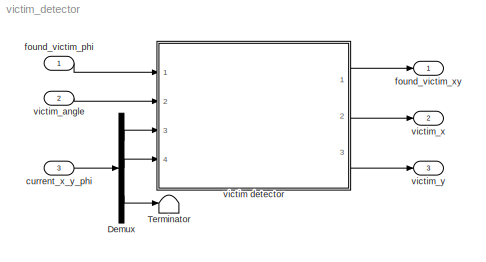
MODEL victim_detector
KIND model
BLOCK [Demux] Demux
  DisplayOption = bar
  Outputs = 3
  Ports = [1, 3]
  SID = 10
BLOCK [Terminator] Terminator
  SID = 11
BLOCK [Inport] current_x_y_phi
  IconDisplay = Port number
  Port = 3
  SID = 9
BLOCK [Inport] found_victim_phi
  IconDisplay = Port number
  SID = 3
BLOCK [Outport] found_victim_xy
  IconDisplay = Port number
  SID = 6
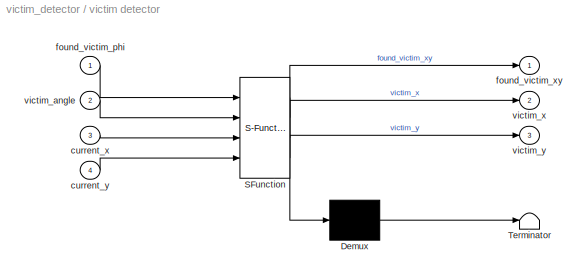
BLOCK [SubSystem] victim detector
  ErrorFcn = Stateflow.Translate.translate
  PermitHierarchicalResolution = ExplicitOnly
  Ports = [4, 3]
  RequestExecContextInheritance = off
  SFBlockType = Chart
  SID = 1
  TreatAsAtomicUnit = on
  Variant = off
BLOCK [Demux] victim detector/ Demux 
  Outputs = 1
  Ports = [1, 1]
  SID = 1::78
BLOCK [S-Function] victim detector/ SFunction 
  EnableBusSupport = on
  FunctionName = sf_sfun
  PortCounts = [4 4]
  Ports = [4, 4]
  SFunctionDeploymentMode = off
  SID = 1::77
  Tag = Stateflow S-Function victim_detector 2
BLOCK [Terminator] victim detector/ Terminator 
  SID = 1::95
BLOCK [Inport] victim detector/current_x
  IconDisplay = Port number
  Port = 3
  SID = 1::97
BLOCK [Inport] victim detector/current_y
  IconDisplay = Port number
  Port = 4
  SID = 1::98
BLOCK [Inport] victim detector/found_victim_phi
  IconDisplay = Port number
  SID = 1::93
BLOCK [Outport] victim detector/found_victim_xy
  IconDisplay = Port number
  SID = 1::94
BLOCK [Inport] victim detector/victim_angle
  IconDisplay = Port number
  Port = 2
  SID = 1::88
BLOCK [Outport] victim detector/victim_x
  IconDisplay = Port number
  Port = 2
  SID = 1::86
BLOCK [Outport] victim detector/victim_y
  IconDisplay = Port number
  Port = 3
  SID = 1::87
BLOCK [Inport] victim_angle
  IconDisplay = Port number
  OutDataTypeStr = double
  Port = 2
  SID = 4
BLOCK [Outport] victim_x
  IconDisplay = Port number
  Port = 2
  SID = 7
BLOCK [Outport] victim_y
  IconDisplay = Port number
  Port = 3
  SID = 8
LINE Demux:1 -> victim detector:3
LINE Demux:2 -> victim detector:4
LINE Demux:3 -> Terminator:1
LINE current_x_y_phi:1 -> Demux:1
LINE found_victim_phi:1 -> victim detector:1
LINE victim detector/ Demux :1 -> victim detector/ Terminator :1
LINE victim detector/ SFunction :1 -> victim detector/ Demux :1
LINE victim detector/ SFunction :2 -> victim detector/found_victim_xy:1
LINE victim detector/ SFunction :3 -> victim detector/victim_x:1
LINE victim detector/ SFunction :4 -> victim detector/victim_y:1
LINE victim detector/current_x:1 -> victim detector/ SFunction :3
LINE victim detector/current_y:1 -> victim detector/ SFunction :4
LINE victim detector/found_victim_phi:1 -> victim detector/ SFunction :1
LINE victim detector/victim_angle:1 -> victim detector/ SFunction :2
LINE victim detector:1 -> found_victim_xy:1
LINE victim detector:2 -> victim_x:1
LINE victim detector:3 -> victim_y:1
LINE victim_angle:1 -> victim detector:2
CHART victim detector states=5 transitions=5
  STATE_LABEL 'WaitForNewInformation'
  STATE_LABEL 'EnoughInformationAboutVictim\\n\\nentry:\\n\tinformation(1,2) = information(1,1);\\n\tinformation(2,2) = information(2,1);\\n\tinformation(3,2) = information(3,1);\\n\tinformation(1,1) = current_x;\\n\tinformation(2,1) = current_y;\\n\tinformation(3,1) = victim_angle;\\n\t[computed_victim_x, computed_victim_y] = compute_position(information);\\n\tif computed_victim_x >= 1 && computed_victim_x <= 200 && computed_vic...<+144ch>'
  STATE_LABEL 'NoInformationAboutVictim\\n\\nentry:\\n\tfound_victim_xy = 0;\\n\t%row 1: x, row 2: y, row 3: phi\\n\tinformation = zeros(3, 2);'
  STATE_LABEL 'SomeInformationAboutVictim\\n\\nentry:\\n\tinformation(1,1) = current_x;\\n\tinformation(2,1) = current_y;\\n\tinformation(3,1) = victim_angle;'
  STATE_LABEL '[x, y] = compute_position(info)'
